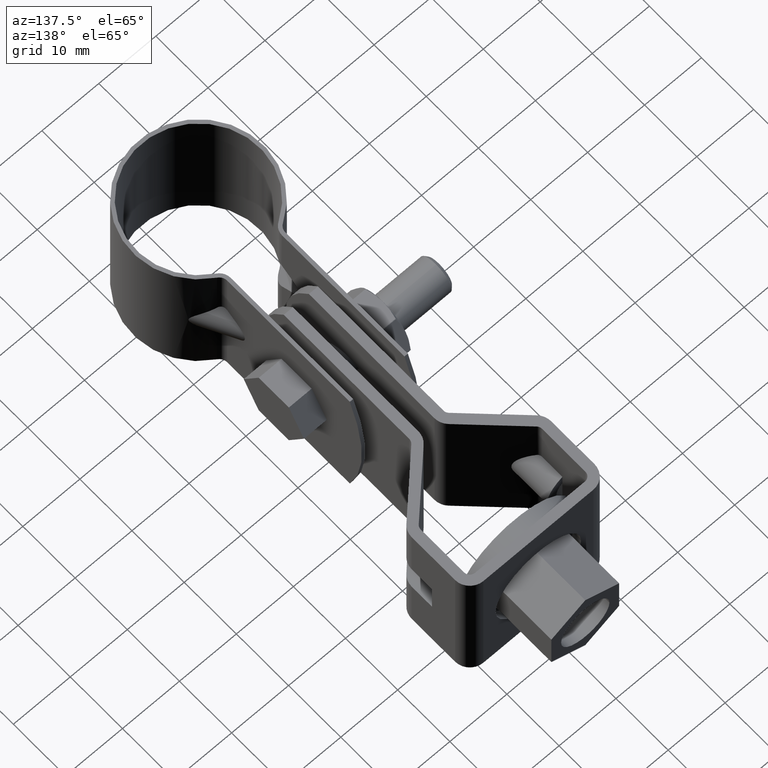
[diagram: clean part render]
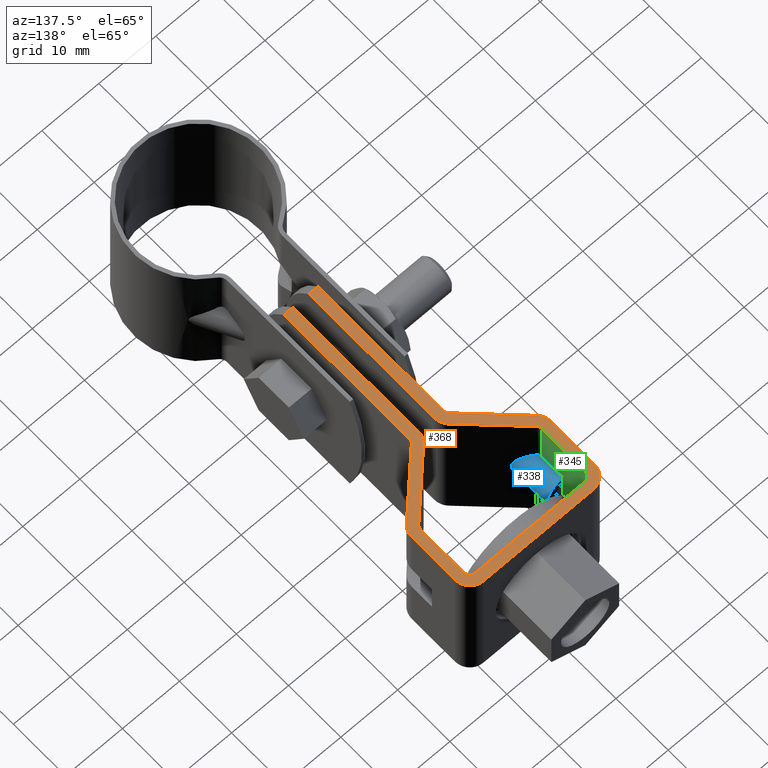
[diagram: same view with three faces highlighted in distinct colors, each labeled with its STEP entity id]
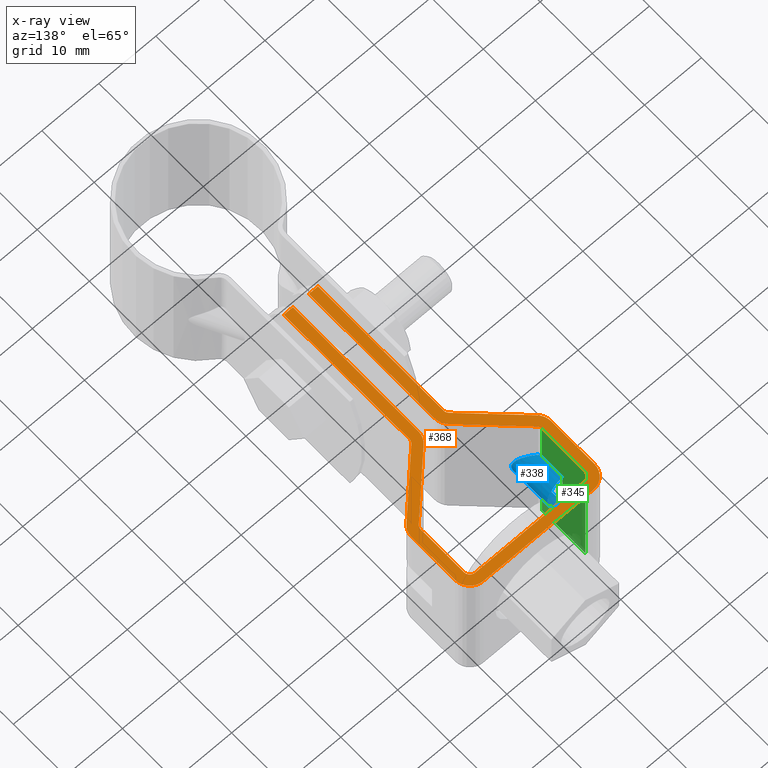
[diagram: x-ray of the same camera — body ghosted, the three highlighted faces saturated]
A machine part, auxiliary view with three faces highlighted in distinct colors.
The next image is the same camera in x-ray (body ghosted, the three faces saturated) — at least one of them is partly hidden behind the body in this view.
Their STEP definitions:

[orange] entity #368 — the highlighted planar face has unit normal (0, -0, 1).
#368 = ADVANCED_FACE( '', ( #613 ), #614, .T. );
#613 = FACE_OUTER_BOUND( '', #885, .T. );
#614 = PLANE( '', #886 );
#885 = EDGE_LOOP( '', ( #1756, #1757, #1758, #1759, #1760, #1761, #1762, #1763, #1764, #1765, #1766, #1767, #1768, #1769, #1770, #1771, #1772, #1773, #1774, #1775, #1776, #1777, #1778, #1779, #1780, #1781, #1782, #1783 ) );
#886 = AXIS2_PLACEMENT_3D( '', #1784, #1785, #1786 );
#1756 = ORIENTED_EDGE( '', *, *, #2206, .T. );
#1757 = ORIENTED_EDGE( '', *, *, #2171, .T. );
#1758 = ORIENTED_EDGE( '', *, *, #2180, .F. );
#1759 = ORIENTED_EDGE( '', *, *, #2174, .F. );
#1760 = ORIENTED_EDGE( '', *, *, #2179, .F. );
#1761 = ORIENTED_EDGE( '', *, *, #2168, .T. );
#1762 = ORIENTED_EDGE( '', *, *, #2215, .T. );
#1763 = ORIENTED_EDGE( '', *, *, #2216, .T. );
#1764 = ORIENTED_EDGE( '', *, *, #2217, .T. );
#1765 = ORIENTED_EDGE( '', *, *, #2123, .T. );
#1766 = ORIENTED_EDGE( '', *, *, #2214, .T. );
#1767 = ORIENTED_EDGE( '', *, *, #2166, .F. );
#1768 = ORIENTED_EDGE( '', *, *, #2153, .F. );
#1769 = ORIENTED_EDGE( '', *, *, #2218, .F. );
#1770 = ORIENTED_EDGE( '', *, *, #2219, .F. );
#1771 = ORIENTED_EDGE( '', *, *, #2220, .F. );
#1772 = ORIENTED_EDGE( '', *, *, #2130, .T. );
#1773 = ORIENTED_EDGE( '', *, *, #2126, .T. );
#1774 = ORIENTED_EDGE( '', *, *, #2221, .T. );
#1775 = ORIENTED_EDGE( '', *, *, #2222, .F. );
#1776 = ORIENTED_EDGE( '', *, *, #2159, .F. );
#1777 = ORIENTED_EDGE( '', *, *, #2156, .F. );
#1778 = ORIENTED_EDGE( '', *, *, #2163, .F. );
#1779 = ORIENTED_EDGE( '', *, *, #2164, .F. );
#1780 = ORIENTED_EDGE( '', *, *, #2213, .T. );
#1781 = ORIENTED_EDGE( '', *, *, #2211, .T. );
#1782 = ORIENTED_EDGE( '', *, *, #2208, .T. );
#1783 = ORIENTED_EDGE( '', *, *, #2204, .T. );
#1784 = CARTESIAN_POINT( '', ( 9.65000000391880, 62.5228151573500, 12.5000013782010 ) );
#1785 = DIRECTION( '', ( 1.87698704392248E-011, -9.98350074832307E-009, 1.00000000000000 ) );
#1786 = DIRECTION( '', ( 1.39877502405819E-011, 1.00000000000000, 9.98350074832280E-009 ) );
#2123 = EDGE_CURVE( '', #2577, #2578, #2579, .T. );
#2126 = EDGE_CURVE( '', #2582, #2583, #2584, .T. );
#2130 = EDGE_CURVE( '', #2589, #2582, #2590, .T. );
#2153 = EDGE_CURVE( '', #2626, #2628, #2629, .T. );
#2156 = EDGE_CURVE( '', #2631, #2633, #2634, .T. );
#2159 = EDGE_CURVE( '', #2633, #2637, #2638, .T. );
#2163 = EDGE_CURVE( '', #2641, #2631, #2643, .T. );
#2164 = EDGE_CURVE( '', #2644, #2641, #2645, .T. );
#2166 = EDGE_CURVE( '', #2628, #2647, #2648, .T. );
#2168 = EDGE_CURVE( '', #2650, #2651, #2652, .F. );
#2171 = EDGE_CURVE( '', #2655, #2656, #2657, .T. );
#2174 = EDGE_CURVE( '', #2660, #2661, #2662, .T. );
#2179 = EDGE_CURVE( '', #2650, #2660, #2669, .T. );
#2180 = EDGE_CURVE( '', #2661, #2656, #2670, .T. );
#2204 = EDGE_CURVE( '', #2711, #2709, #2712, .T. );
#2206 = EDGE_CURVE( '', #2709, #2655, #2714, .T. );
#2208 = EDGE_CURVE( '', #2716, #2711, #2717, .T. );
#2211 = EDGE_CURVE( '', #2720, #2716, #2721, .T. );
#2213 = EDGE_CURVE( '', #2644, #2720, #2723, .T. );
#2214 = EDGE_CURVE( '', #2578, #2647, #2724, .T. );
#2215 = EDGE_CURVE( '', #2651, #2725, #2726, .T. );
#2216 = EDGE_CURVE( '', #2725, #2727, #2728, .T. );
#2217 = EDGE_CURVE( '', #2727, #2577, #2729, .T. );
#2218 = EDGE_CURVE( '', #2730, #2626, #2731, .T. );
#2219 = EDGE_CURVE( '', #2732, #2730, #2733, .T. );
#2220 = EDGE_CURVE( '', #2589, #2732, #2734, .F. );
#2221 = EDGE_CURVE( '', #2583, #2735, #2736, .T. );
#2222 = EDGE_CURVE( '', #2637, #2735, #2737, .T. );
#2577 = VERTEX_POINT( '', #3357 );
#2578 = VERTEX_POINT( '', #3358 );
#2579 = CIRCLE( '', #3359, 2.59999999999999 );
#2582 = VERTEX_POINT( '', #3364 );
#2583 = VERTEX_POINT( '', #3365 );
#2584 = LINE( '', #3366, #3367 );
#2589 = VERTEX_POINT( '', #3372 );
#2590 = LINE( '', #3373, #3374 );
#2626 = VERTEX_POINT( '', #3447 );
#2628 = VERTEX_POINT( '', #3450 );
#2629 = LINE( '', #3451, #3452 );
#2631 = VERTEX_POINT( '', #3455 );
#2633 = VERTEX_POINT( '', #3458 );
#2634 = CIRCLE( '', #3459, 0.999999999999999 );
#2637 = VERTEX_POINT( '', #3464 );
#2638 = LINE( '', #3465, #3466 );
#2641 = VERTEX_POINT( '', #3471 );
#2643 = LINE( '', #3474, #3475 );
#2644 = VERTEX_POINT( '', #3476 );
#2645 = CIRCLE( '', #3477, 1.00000000000000 );
#2647 = VERTEX_POINT( '', #3480 );
#2648 = CIRCLE( '', #3481, 2.59999999999999 );
#2650 = VERTEX_POINT( '', #3484 );
#2651 = VERTEX_POINT( '', #3485 );
#2652 = CIRCLE( '', #3486, 1.00000000000000 );
#2655 = VERTEX_POINT( '', #3491 );
#2656 = VERTEX_POINT( '', #3492 );
#2657 = CIRCLE( '', #3493, 2.60000000000000 );
#2660 = VERTEX_POINT( '', #3498 );
#2661 = VERTEX_POINT( '', #3499 );
#2662 = LINE( '', #3500, #3501 );
#2669 = LINE( '', #3508, #3509 );
#2670 = LINE( '', #3510, #3511 );
#2709 = VERTEX_POINT( '', #3586 );
#2711 = VERTEX_POINT( '', #3589 );
#2712 = CIRCLE( '', #3590, 1.00000000000000 );
#2714 = LINE( '', #3593, #3594 );
#2716 = VERTEX_POINT( '', #3597 );
#2717 = LINE( '', #3598, #3599 );
#2720 = VERTEX_POINT( '', #3604 );
#2721 = CIRCLE( '', #3605, 1.00000000000000 );
#2723 = LINE( '', #3608, #3609 );
#2724 = LINE( '', #3610, #3611 );
#2725 = VERTEX_POINT( '', #3612 );
#2726 = LINE( '', #3613, #3614 );
#2727 = VERTEX_POINT( '', #3615 );
#2728 = CIRCLE( '', #3616, 2.59999999999999 );
#2729 = LINE( '', #3617, #3618 );
#2730 = VERTEX_POINT( '', #3619 );
#2731 = CIRCLE( '', #3620, 2.59999999999999 );
#2732 = VERTEX_POINT( '', #3621 );
#2733 = LINE( '', #3622, #3623 );
#2734 = CIRCLE( '', #3624, 0.999999999999998 );
#2735 = VERTEX_POINT( '', #3625 );
#2736 = LINE( '', #3626, #3627 );
#2737 = CIRCLE( '', #3628, 2.59999999999999 );
#3357 = CARTESIAN_POINT( '', ( 12.2500000039188, 62.5228151573136, 12.5000013781522 ) );
#3358 = CARTESIAN_POINT( '', ( 9.65000000395517, 65.1228151573499, 12.5000014041581 ) );
#3359 = AXIS2_PLACEMENT_3D( '', #4024, #4025, #4026 );
#3364 = CARTESIAN_POINT( '', ( -2.99999999668126, 19.6228151906154, 12.5000009501462 ) );
#3365 = CARTESIAN_POINT( '', ( -1.39999999668127, 19.6228151905930, 12.5000009501162 ) );
#3366 = CARTESIAN_POINT( '', ( -38.4737108532771, 19.6228151960030, 12.5000009567253 ) );
#3367 = VECTOR( '', #4029, 999.999999999998 );
#3372 = CARTESIAN_POINT( '', ( -2.99999999634481, 43.6769615620475, 12.5000011902908 ) );
#3373 = CARTESIAN_POINT( '', ( -2.99999999633891, 44.0984253309376, 12.5000011944985 ) );
#3374 = VECTOR( '', #4039, 1000.00000000000 );
#3447 = CARTESIAN_POINT( '', ( -12.2499999961973, 54.2186209567708, 12.5000012957071 ) );
#3450 = CARTESIAN_POINT( '', ( -12.2499999960812, 62.5228151576566, 12.5000013786120 ) );
#3451 = CARTESIAN_POINT( '', ( -12.2499999961973, 54.2186209567708, 12.5000012957071 ) );
#3452 = VECTOR( '', #4070, 1000.00000000000 );
#3455 = CARTESIAN_POINT( '', ( -10.6499999961973, 54.2186209265243, 12.5000012956771 ) );
#3458 = CARTESIAN_POINT( '', ( -10.3483238317379, 53.5028389620015, 12.5000012885254 ) );
#3459 = AXIS2_PLACEMENT_3D( '', #4073, #4074, #4075 );
#3464 = CARTESIAN_POINT( '', ( -2.18435802393948, 45.5379946395601, 12.5000012088551 ) );
#3465 = CARTESIAN_POINT( '', ( -10.3483238317379, 53.5028389620015, 12.5000012885254 ) );
#3466 = VECTOR( '', #4078, 1000.00000000000 );
#3471 = CARTESIAN_POINT( '', ( -10.6499999960812, 62.5228151576342, 12.5000013785820 ) );
#3474 = CARTESIAN_POINT( '', ( -10.6499999960812, 62.5228151576342, 12.5000013785820 ) );
#3475 = VECTOR( '', #4082, 1000.00000000000 );
#3476 = CARTESIAN_POINT( '', ( -9.64999999606720, 63.5228151576202, 12.5000013885467 ) );
#3477 = AXIS2_PLACEMENT_3D( '', #4083, #4084, #4085 );
#3480 = CARTESIAN_POINT( '', ( -9.64999999604482, 65.1228151576202, 12.5000014045203 ) );
#3481 = AXIS2_PLACEMENT_3D( '', #4087, #4088, #4089 );
#3484 = CARTESIAN_POINT( '', ( 3.00000000365518, 43.6769615619633, 12.5000011901782 ) );
#3485 = CARTESIAN_POINT( '', ( 3.30167616813469, 44.3927435264776, 12.5000011973186 ) );
#3486 = AXIS2_PLACEMENT_3D( '', #4091, #4092, #4093 );
#3491 = CARTESIAN_POINT( '', ( 2.18435803130192, 45.5379946394987, 12.5000012087732 ) );
#3492 = CARTESIAN_POINT( '', ( 1.40000000365519, 43.6769615317616, 12.5000011902083 ) );
#3493 = AXIS2_PLACEMENT_3D( '', #4096, #4097, #4098 );
#3498 = CARTESIAN_POINT( '', ( 3.00000000331872, 19.6228151905312, 12.5000009500337 ) );
#3499 = CARTESIAN_POINT( '', ( 1.40000000331872, 19.6228151905536, 12.5000009500637 ) );
#3500 = CARTESIAN_POINT( '', ( 38.4737108599146, 19.6228151949265, 12.5000009552810 ) );
#3501 = VECTOR( '', #4101, 1000.00000000000 );
#3508 = CARTESIAN_POINT( '', ( 3.00000000366108, 44.0984253308534, 12.5000011943859 ) );
#3509 = VECTOR( '', #4114, 1000.00000000000 );
#3510 = CARTESIAN_POINT( '', ( 1.40000000325578, 15.1228151574655, 12.5000009051379 ) );
#3511 = VECTOR( '', #4115, 1000.00000000000 );
#3586 = CARTESIAN_POINT( '', ( 10.3483238393231, 53.5028389617117, 12.5000012881370 ) );
#3589 = CARTESIAN_POINT( '', ( 10.6500000038026, 54.2186209262260, 12.5000012952773 ) );
#3590 = AXIS2_PLACEMENT_3D( '', #4151, #4152, #4153 );
#3593 = CARTESIAN_POINT( '', ( 10.3483238393231, 53.5028389617117, 12.5000012881370 ) );
#3594 = VECTOR( '', #4155, 1000.00000000000 );
#3597 = CARTESIAN_POINT( '', ( 10.6500000039188, 62.5228151573360, 12.5000013781822 ) );
#3598 = CARTESIAN_POINT( '', ( 10.6500000039188, 62.5228151573360, 12.5000013781822 ) );
#3599 = VECTOR( '', #4157, 1000.00000000000 );
#3604 = CARTESIAN_POINT( '', ( 9.65000000393279, 63.5228151573500, 12.5000013881845 ) );
#3605 = AXIS2_PLACEMENT_3D( '', #4160, #4161, #4162 );
#3608 = CARTESIAN_POINT( '', ( -9.64999999606722, 63.5228151576199, 12.5000013885468 ) );
#3609 = VECTOR( '', #4164, 1000.00000000000 );
#3610 = CARTESIAN_POINT( '', ( 9.65000000395517, 65.1228151573499, 12.5000014041581 ) );
#3611 = VECTOR( '', #4165, 1000.00000000000 );
#3612 = CARTESIAN_POINT( '', ( 11.4656419761559, 52.3575878486906, 12.5000012766824 ) );
#3613 = CARTESIAN_POINT( '', ( 3.90167616814289, 44.9781093530588, 12.5000012031513 ) );
#3614 = VECTOR( '', #4166, 1000.00000000000 );
#3615 = CARTESIAN_POINT( '', ( 12.2500000038026, 54.2186209564277, 12.5000012952473 ) );
#3616 = AXIS2_PLACEMENT_3D( '', #4167, #4168, #4169 );
#3617 = CARTESIAN_POINT( '', ( 12.2500000038026, 54.2186209564277, 12.5000012952473 ) );
#3618 = VECTOR( '', #4170, 1000.00000000000 );
#3619 = CARTESIAN_POINT( '', ( -11.4656419686027, 52.3575878490117, 12.5000012771128 ) );
#3620 = AXIS2_PLACEMENT_3D( '', #4171, #4172, #4173 );
#3621 = CARTESIAN_POINT( '', ( -3.30167616080429, 44.3927435265702, 12.5000011974425 ) );
#3622 = CARTESIAN_POINT( '', ( -3.90167616079611, 44.9781093531683, 12.5000012032977 ) );
#3623 = VECTOR( '', #4174, 1000.00000000000 );
#3624 = AXIS2_PLACEMENT_3D( '', #4175, #4176, #4177 );
#3625 = CARTESIAN_POINT( '', ( -1.39999999634482, 43.6769615318010, 12.5000011902608 ) );
#3626 = CARTESIAN_POINT( '', ( -1.39999999674422, 15.1228151575049, 12.5000009051904 ) );
#3627 = VECTOR( '', #4178, 1000.00000000000 );
#3628 = AXIS2_PLACEMENT_3D( '', #4179, #4180, #4181 );
#4024 = CARTESIAN_POINT( '', ( 9.65000000391880, 62.5228151573500, 12.5000013782010 ) );
#4025 = DIRECTION( '', ( 1.87698704392248E-011, -9.98350074832307E-009, 1.00000000000000 ) );
#4026 = DIRECTION( '', ( 1.00000000000000, -1.39877500531929E-011, -1.87698705788715E-011 ) );
#4029 = DIRECTION( '', ( 1.00000000000000, -1.39876275925575E-011, -1.87698705788703E-011 ) );
#4039 = DIRECTION( '', ( -1.39875167576440E-011, -1.00000000000000, -9.98350074832280E-009 ) );
#4070 = DIRECTION( '', ( 1.39876277799465E-011, 1.00000000000000, 9.98350074832280E-009 ) );
#4073 = CARTESIAN_POINT( '', ( -9.64999999619735, 54.2186209265103, 12.5000012956583 ) );
#4074 = DIRECTION( '', ( 1.87698704392248E-011, -9.98350074832307E-009, 1.00000000000000 ) );
#4075 = DIRECTION( '', ( -1.00000000000000, 1.39876275925575E-011, 1.87698705788703E-011 ) );
#4078 = DIRECTION( '', ( 0.715781964508736, -0.698323835540514, -6.98515166942712E-009 ) );
#4082 = DIRECTION( '', ( -1.39876277799465E-011, -1.00000000000000, -9.98350074832280E-009 ) );
#4083 = CARTESIAN_POINT( '', ( -9.64999999608119, 62.5228151576202, 12.5000013785632 ) );
#4084 = DIRECTION( '', ( 1.87698704392248E-011, -9.98350074832307E-009, 1.00000000000000 ) );
#4085 = DIRECTION( '', ( 1.39876277799465E-011, 1.00000000000000, 9.98350074832281E-009 ) );
#4087 = CARTESIAN_POINT( '', ( -9.64999999608119, 62.5228151576202, 12.5000013785632 ) );
#4088 = DIRECTION( '', ( -1.87698704392248E-011, 9.98350074832307E-009, -1.00000000000000 ) );
#4089 = DIRECTION( '', ( -1.00000000000000, 1.39876275925575E-011, 1.87698705788703E-011 ) );
#4091 = CARTESIAN_POINT( '', ( 4.00000000365518, 43.6769615619493, 12.5000011901595 ) );
#4092 = DIRECTION( '', ( 1.87698704392248E-011, -9.98350074832307E-009, 1.00000000000000 ) );
#4093 = DIRECTION( '', ( 1.00000000000000, -1.39877500531929E-011, -1.87698705788715E-011 ) );
#4096 = CARTESIAN_POINT( '', ( 4.00000000365518, 43.6769615317252, 12.5000011901595 ) );
#4097 = DIRECTION( '', ( 1.87698704392248E-011, -9.98350074832307E-009, 1.00000000000000 ) );
#4098 = DIRECTION( '', ( 1.00000000000000, -1.39877500531929E-011, -1.87698705788715E-011 ) );
#4101 = DIRECTION( '', ( -1.00000000000000, 1.39877500531929E-011, 1.87698705788715E-011 ) );
#4114 = DIRECTION( '', ( -1.39878612628843E-011, -1.00000000000000, -9.98350074832280E-009 ) );
#4115 = DIRECTION( '', ( 1.39878612628843E-011, 1.00000000000000, 9.98350074832280E-009 ) );
#4151 = CARTESIAN_POINT( '', ( 9.65000000380264, 54.2186209262400, 12.5000012952961 ) );
#4152 = DIRECTION( '', ( -1.87698704392248E-011, 9.98350074832307E-009, -1.00000000000000 ) );
#4153 = DIRECTION( '', ( 1.00000000000000, -1.39877500531929E-011, -1.87698705788715E-011 ) );
#4155 = DIRECTION( '', ( -0.715781964528273, -0.698323835520488, -6.95828139975370E-009 ) );
#4157 = DIRECTION( '', ( -1.39877502405819E-011, -1.00000000000000, -9.98350074832280E-009 ) );
#4160 = CARTESIAN_POINT( '', ( 9.65000000391880, 62.5228151573500, 12.5000013782010 ) );
#4161 = DIRECTION( '', ( -1.87698704392248E-011, 9.98350074832307E-009, -1.00000000000000 ) );
#4162 = DIRECTION( '', ( 1.39877502405819E-011, 1.00000000000000, 9.98350074832280E-009 ) );
#4164 = DIRECTION( '', ( 1.00000000000000, -1.39877500531929E-011, -1.87698705788715E-011 ) );
#4165 = DIRECTION( '', ( -1.00000000000000, 1.39877500531929E-011, 1.87698705788715E-011 ) );
#4166 = DIRECTION( '', ( 0.715781964528273, 0.698323835520488, 6.95828139975370E-009 ) );
#4167 = CARTESIAN_POINT( '', ( 9.65000000380264, 54.2186209564641, 12.5000012952961 ) );
#4168 = DIRECTION( '', ( 1.87698704392248E-011, -9.98350074832307E-009, 1.00000000000000 ) );
#4169 = DIRECTION( '', ( 0.698323835520490, -0.715781964528272, -7.15911722642150E-009 ) );
#4170 = DIRECTION( '', ( 1.39877502405819E-011, 1.00000000000000, 9.98350074832280E-009 ) );
#4171 = CARTESIAN_POINT( '', ( -9.64999999619735, 54.2186209567344, 12.5000012956583 ) );
#4172 = DIRECTION( '', ( -1.87698704392238E-011, 9.98350074832307E-009, -1.00000000000000 ) );
#4173 = DIRECTION( '', ( -0.698323835540512, -0.715781964508738, -7.13290233039142E-009 ) );
#4174 = DIRECTION( '', ( -0.715781964508736, 0.698323835540514, 6.98515166942712E-009 ) );
#4175 = CARTESIAN_POINT( '', ( -3.99999999634480, 43.6769615620615, 12.5000011903096 ) );
#4176 = DIRECTION( '', ( -1.87698704392248E-011, 9.98350074832307E-009, -1.00000000000000 ) );
#4177 = DIRECTION( '', ( -1.00000000000000, 1.39876275925575E-011, 1.87698705788703E-011 ) );
#4178 = DIRECTION( '', ( 1.39875167576440E-011, 1.00000000000000, 9.98350074832280E-009 ) );
#4179 = CARTESIAN_POINT( '', ( -3.99999999634480, 43.6769615318374, 12.5000011903096 ) );
#4180 = DIRECTION( '', ( -1.87698704392248E-011, 9.98350074832307E-009, -1.00000000000000 ) );
#4181 = DIRECTION( '', ( -1.00000000000000, 1.39876275925575E-011, 1.87698705788703E-011 ) );

[blue] entity #338 — the highlighted cylindrical surface (edge-blend (fillet) strip) has radius 4.25 mm, axis along (-0, -1, -0).
#338 = ADVANCED_FACE( '', ( #547 ), #548, .T. );
#547 = FACE_OUTER_BOUND( '', #819, .T. );
#548 = CYLINDRICAL_SURFACE( '', #820, 4.24999999999996 );
#819 = EDGE_LOOP( '', ( #1518, #1519, #1520, #1521, #1522, #1523 ) );
#820 = AXIS2_PLACEMENT_3D( '', #1524, #1525, #1526 );
#1518 = ORIENTED_EDGE( '', *, *, #2140, .F. );
#1519 = ORIENTED_EDGE( '', *, *, #2141, .F. );
#1520 = ORIENTED_EDGE( '', *, *, #2142, .F. );
#1521 = ORIENTED_EDGE( '', *, *, #2143, .F. );
#1522 = ORIENTED_EDGE( '', *, *, #2144, .T. );
#1523 = ORIENTED_EDGE( '', *, *, #2145, .F. );
#1524 = CARTESIAN_POINT( '', ( -12.2499999965172, 48.1228152824501, 1.23484962533116E-006 ) );
#1525 = DIRECTION( '', ( -1.39876277799465E-011, -1.00000000000000, -9.98350074832281E-009 ) );
#1526 = DIRECTION( '', ( -1.87488145554088E-011, 9.98350074832307E-009, -1.00000000000000 ) );
#2140 = EDGE_CURVE( '', #2608, #2609, #2610, .T. );
#2141 = EDGE_CURVE( '', #2611, #2608, #2612, .T. );
#2142 = EDGE_CURVE( '', #2613, #2611, #2614, .T. );
#2143 = EDGE_CURVE( '', #2615, #2613, #2616, .F. );
#2144 = EDGE_CURVE( '', #2615, #2617, #2618, .T. );
#2145 = EDGE_CURVE( '', #2609, #2617, #2619, .T. );
#2608 = VERTEX_POINT( '', #3411 );
#2609 = VERTEX_POINT( '', #3412 );
#2610 = B_SPLINE_CURVE_WITH_KNOTS( '', 3, ( #3413, #3414, #3415, #3416, #3417, #3418 ), .UNSPECIFIED., .F., .F., ( 4, 2, 4 ), ( 1.93947980722448E-018, 0.000404290461596237, 0.000808580923192472 ), .UNSPECIFIED. );
#2611 = VERTEX_POINT( '', #3419 );
#2612 = ELLIPSE( '', #3420, 5.93756228945901, 4.24999999999996 );
#2613 = VERTEX_POINT( '', #3421 );
#2614 = B_SPLINE_CURVE_WITH_KNOTS( '', 3, ( #3422, #3423, #3424, #3425, #3426, #3427 ), .UNSPECIFIED., .F., .F., ( 4, 2, 4 ), ( 0.000000000000000, 0.000404110423349703, 0.000808220846699406 ), .UNSPECIFIED. );
#2615 = VERTEX_POINT( '', #3428 );
#2616 = LINE( '', #3429, #3430 );
#2617 = VERTEX_POINT( '', #3431 );
#2618 = CIRCLE( '', #3432, 4.24999999999996 );
#2619 = LINE( '', #3433, #3434 );
#3411 = CARTESIAN_POINT( '', ( -10.3483238319011, 53.5028390488500, 3.80080748793739 ) );
#3412 = CARTESIAN_POINT( '', ( -10.6499999963581, 54.2186210120098, 3.93732272019907 ) );
#3413 = CARTESIAN_POINT( '', ( -10.3483238319011, 53.5028390488500, 3.80080748793739 ) );
#3414 = CARTESIAN_POINT( '', ( -10.4403808966861, 53.5926508147622, 3.84686685537321 ) );
#3415 = CARTESIAN_POINT( '', ( -10.5165797495195, 53.7020961527698, 3.88085466962678 ) );
#3416 = CARTESIAN_POINT( '', ( -10.6216014646910, 53.9470533665723, 3.92607909713219 ) );
#3417 = CARTESIAN_POINT( '', ( -10.6499999963600, 54.0818963386171, 3.93732271883408 ) );
#3418 = CARTESIAN_POINT( '', ( -10.6499999963581, 54.2186210120098, 3.93732272019907 ) );
#3419 = CARTESIAN_POINT( '', ( -10.3483238320438, 53.5028391247406, -3.80080491088657 ) );
#3420 = AXIS2_PLACEMENT_3D( '', #4055, #4056, #4057 );
#3421 = CARTESIAN_POINT( '', ( -10.6499999965059, 54.2186210906263, -3.93732012884491 ) );
#3422 = CARTESIAN_POINT( '', ( -10.6499999965059, 54.2186210906263, -3.93732012884491 ) );
#3423 = CARTESIAN_POINT( '', ( -10.6499999965078, 54.0819452878398, -3.93732013020942 ) );
#3424 = CARTESIAN_POINT( '', ( -10.6217333049777, 53.9475552628507, -3.92612968110160 ) );
#3425 = CARTESIAN_POINT( '', ( -10.5168996467145, 53.7026488987646, -3.88099343014435 ) );
#3426 = CARTESIAN_POINT( '', ( -10.4403731816448, 53.5926433645625, -3.84686041634874 ) );
#3427 = CARTESIAN_POINT( '', ( -10.3483238320438, 53.5028391247406, -3.80080491088657 ) );
#3428 = CARTESIAN_POINT( '', ( -10.6499999964513, 58.1228153217360, -3.93732008986737 ) );
#3429 = CARTESIAN_POINT( '', ( -10.6499999966611, 43.1228153217362, -3.93732023961990 ) );
#3430 = VECTOR( '', #4058, 1000.00000000000 );
#3431 = CARTESIAN_POINT( '', ( -10.6499999963035, 58.1228152431195, 3.93732275917659 ) );
#3432 = AXIS2_PLACEMENT_3D( '', #4059, #4060, #4061 );
#3433 = CARTESIAN_POINT( '', ( -10.6499999965133, 43.1228152431197, 3.93732260942409 ) );
#3434 = VECTOR( '', #4062, 1000.00000000000 );
#4055 = CARTESIAN_POINT( '', ( -12.2499999964160, 55.3581328200226, 1.30708342760411E-006 ) );
#4056 = DIRECTION( '', ( -0.698323835540511, -0.715781964508739, -7.13290233039143E-009 ) );
#4057 = DIRECTION( '', ( -0.715781964508739, 0.698323835540511, 6.98515166942709E-009 ) );
#4058 = DIRECTION( '', ( 1.39876277799465E-011, 1.00000000000000, 9.98350074832280E-009 ) );
#4059 = CARTESIAN_POINT( '', ( -12.2499999963773, 58.1228152824501, 1.33468464058595E-006 ) );
#4060 = DIRECTION( '', ( -1.39876277799465E-011, -1.00000000000000, -9.98350074832281E-009 ) );
#4061 = DIRECTION( '', ( -1.87700394073501E-011, 9.98350074832307E-009, -1.00000000000000 ) );
#4062 = DIRECTION( '', ( 1.39876277799465E-011, 1.00000000000000, 9.98350074832280E-009 ) );

[green] entity #345 — the highlighted planar face has unit normal (1, -0, -0).
#345 = ADVANCED_FACE( '', ( #561 ), #562, .T. );
#561 = FACE_OUTER_BOUND( '', #833, .T. );
#562 = PLANE( '', #834 );
#833 = EDGE_LOOP( '', ( #1575, #1576, #1577, #1578, #1579, #1580, #1581, #1582, #1583, #1584 ) );
#834 = AXIS2_PLACEMENT_3D( '', #1585, #1586, #1587 );
#1575 = ORIENTED_EDGE( '', *, *, #2145, .T. );
#1576 = ORIENTED_EDGE( '', *, *, #2147, .T. );
#1577 = ORIENTED_EDGE( '', *, *, #2149, .T. );
#1578 = ORIENTED_EDGE( '', *, *, #2146, .T. );
#1579 = ORIENTED_EDGE( '', *, *, #2143, .T. );
#1580 = ORIENTED_EDGE( '', *, *, #2161, .F. );
#1581 = ORIENTED_EDGE( '', *, *, #2103, .F. );
#1582 = ORIENTED_EDGE( '', *, *, #2162, .T. );
#1583 = ORIENTED_EDGE( '', *, *, #2163, .T. );
#1584 = ORIENTED_EDGE( '', *, *, #2155, .F. );
#1585 = CARTESIAN_POINT( '', ( -10.6499999965504, 62.5228154072217, -12.4999986214180 ) );
#1586 = DIRECTION( '', ( 1.00000000000000, -1.39876275925575E-011, -1.87698705788703E-011 ) );
#1587 = DIRECTION( '', ( 1.39876277799465E-011, 1.00000000000000, 9.98350074832280E-009 ) );
#2103 = EDGE_CURVE( '', #2536, #2538, #2539, .T. );
#2143 = EDGE_CURVE( '', #2615, #2613, #2616, .F. );
#2145 = EDGE_CURVE( '', #2609, #2617, #2619, .T. );
#2146 = EDGE_CURVE( '', #2601, #2615, #2620, .T. );
#2147 = EDGE_CURVE( '', #2617, #2599, #2621, .T. );
#2149 = EDGE_CURVE( '', #2599, #2601, #2623, .T. );
#2155 = EDGE_CURVE( '', #2609, #2631, #2632, .T. );
#2161 = EDGE_CURVE( '', #2538, #2613, #2640, .T. );
#2162 = EDGE_CURVE( '', #2536, #2641, #2642, .T. );
#2163 = EDGE_CURVE( '', #2641, #2631, #2643, .T. );
#2536 = VERTEX_POINT( '', #3304 );
#2538 = VERTEX_POINT( '', #3306 );
#2539 = LINE( '', #3307, #3308 );
#2599 = VERTEX_POINT( '', #3394 );
#2601 = VERTEX_POINT( '', #3396 );
#2609 = VERTEX_POINT( '', #3412 );
#2613 = VERTEX_POINT( '', #3421 );
#2615 = VERTEX_POINT( '', #3428 );
#2616 = LINE( '', #3429, #3430 );
#2617 = VERTEX_POINT( '', #3431 );
#2619 = LINE( '', #3433, #3434 );
#2620 = LINE( '', #3435, #3436 );
#2621 = LINE( '', #3437, #3438 );
#2623 = LINE( '', #3441, #3442 );
#2631 = VERTEX_POINT( '', #3455 );
#2632 = LINE( '', #3456, #3457 );
#2640 = LINE( '', #3469, #3470 );
#2641 = VERTEX_POINT( '', #3471 );
#2642 = LINE( '', #3472, #3473 );
#2643 = LINE( '', #3474, #3475 );
#3304 = CARTESIAN_POINT( '', ( -10.6499999965504, 62.5228154072217, -12.4999986214180 ) );
#3306 = CARTESIAN_POINT( '', ( -10.6499999966666, 54.2186211761118, -12.4999987043229 ) );
#3307 = CARTESIAN_POINT( '', ( -10.6499999965504, 62.5228154072217, -12.4999986214180 ) );
#3308 = VECTOR( '', #3988, 1000.00000000000 );
#3394 = CARTESIAN_POINT( '', ( -10.6499999963377, 58.1228152613380, 2.11246435208237 ) );
#3396 = CARTESIAN_POINT( '', ( -10.6499999964170, 58.1228153035175, -2.11246168277315 ) );
#3412 = CARTESIAN_POINT( '', ( -10.6499999963581, 54.2186210120098, 3.93732272019907 ) );
#3421 = CARTESIAN_POINT( '', ( -10.6499999965059, 54.2186210906263, -3.93732012884491 ) );
#3428 = CARTESIAN_POINT( '', ( -10.6499999964513, 58.1228153217360, -3.93732008986737 ) );
#3429 = CARTESIAN_POINT( '', ( -10.6499999966611, 43.1228153217362, -3.93732023961990 ) );
#3430 = VECTOR( '', #4058, 1000.00000000000 );
#3431 = CARTESIAN_POINT( '', ( -10.6499999963035, 58.1228152431195, 3.93732275917659 ) );
#3433 = CARTESIAN_POINT( '', ( -10.6499999965133, 43.1228152431197, 3.93732260942409 ) );
#3434 = VECTOR( '', #4062, 1000.00000000000 );
#3435 = CARTESIAN_POINT( '', ( -10.6499999966120, 58.1228154072217, -12.4999986653454 ) );
#3436 = VECTOR( '', #4063, 1000.00000000000 );
#3437 = CARTESIAN_POINT( '', ( -10.6499999966120, 58.1228154072217, -12.4999986653454 ) );
#3438 = VECTOR( '', #4064, 1000.00000000000 );
#3441 = CARTESIAN_POINT( '', ( -10.6499999966120, 58.1228154072217, -12.4999986653454 ) );
#3442 = VECTOR( '', #4066, 1000.00000000000 );
#3455 = CARTESIAN_POINT( '', ( -10.6499999961973, 54.2186209265243, 12.5000012956771 ) );
#3456 = CARTESIAN_POINT( '', ( -10.6499999966666, 54.2186211761118, -12.4999987043229 ) );
#3457 = VECTOR( '', #4072, 1000.00000000000 );
#3469 = CARTESIAN_POINT( '', ( -10.6499999966666, 54.2186211761118, -12.4999987043229 ) );
#3470 = VECTOR( '', #4080, 1000.00000000000 );
#3471 = CARTESIAN_POINT( '', ( -10.6499999960812, 62.5228151576342, 12.5000013785820 ) );
#3472 = CARTESIAN_POINT( '', ( -10.6499999965504, 62.5228154072217, -12.4999986214180 ) );
#3473 = VECTOR( '', #4081, 1000.00000000000 );
#3474 = CARTESIAN_POINT( '', ( -10.6499999960812, 62.5228151576342, 12.5000013785820 ) );
#3475 = VECTOR( '', #4082, 1000.00000000000 );
#3988 = DIRECTION( '', ( -1.39876277799465E-011, -1.00000000000000, -9.98350074832280E-009 ) );
#4058 = DIRECTION( '', ( 1.39876277799465E-011, 1.00000000000000, 9.98350074832280E-009 ) );
#4062 = DIRECTION( '', ( 1.39876277799465E-011, 1.00000000000000, 9.98350074832280E-009 ) );
#4063 = DIRECTION( '', ( -1.87698704392248E-011, 9.98350074832307E-009, -1.00000000000000 ) );
#4064 = DIRECTION( '', ( -1.87698704392248E-011, 9.98350074832307E-009, -1.00000000000000 ) );
#4066 = DIRECTION( '', ( -1.87698704392248E-011, 9.98350074832307E-009, -1.00000000000000 ) );
#4072 = DIRECTION( '', ( 1.87698704392248E-011, -9.98350074832307E-009, 1.00000000000000 ) );
#4080 = DIRECTION( '', ( 1.87698704392248E-011, -9.98350074832307E-009, 1.00000000000000 ) );
#4081 = DIRECTION( '', ( 1.87698704392248E-011, -9.98350074832307E-009, 1.00000000000000 ) );
#4082 = DIRECTION( '', ( -1.39876277799465E-011, -1.00000000000000, -9.98350074832280E-009 ) );